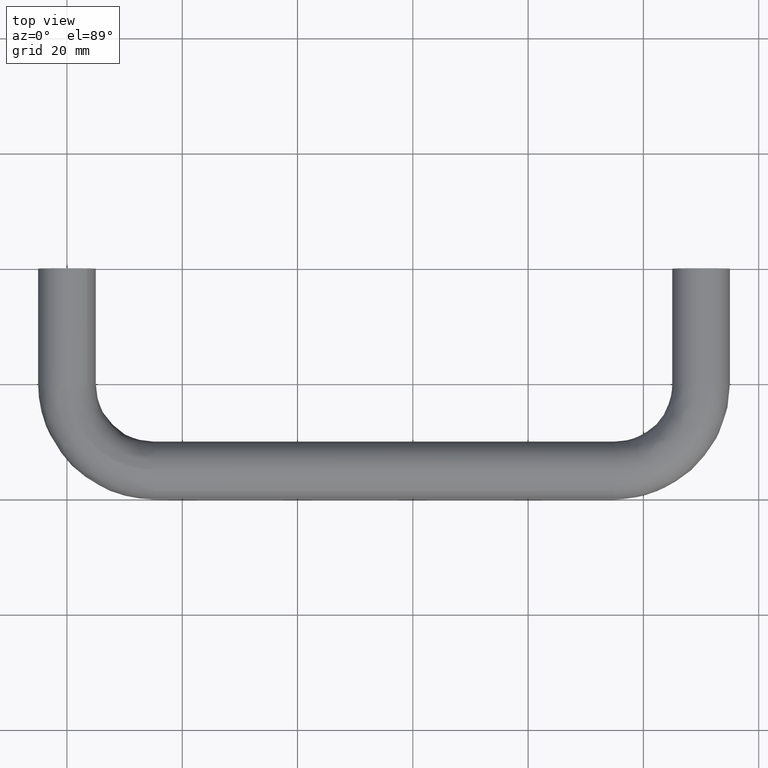
[diagram: clean part render]
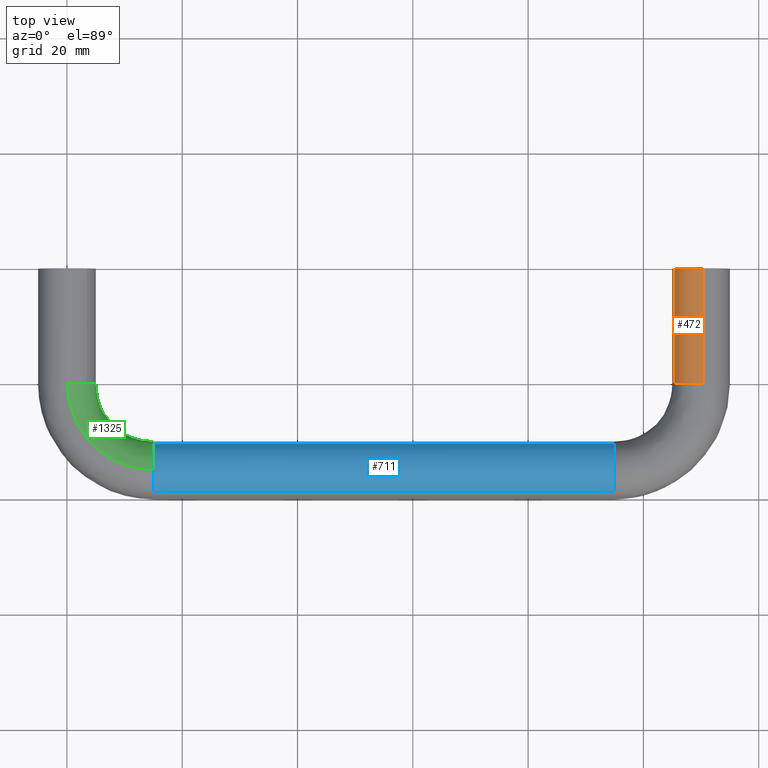
[diagram: same view with three faces highlighted in distinct colors, each labeled with its STEP entity id]
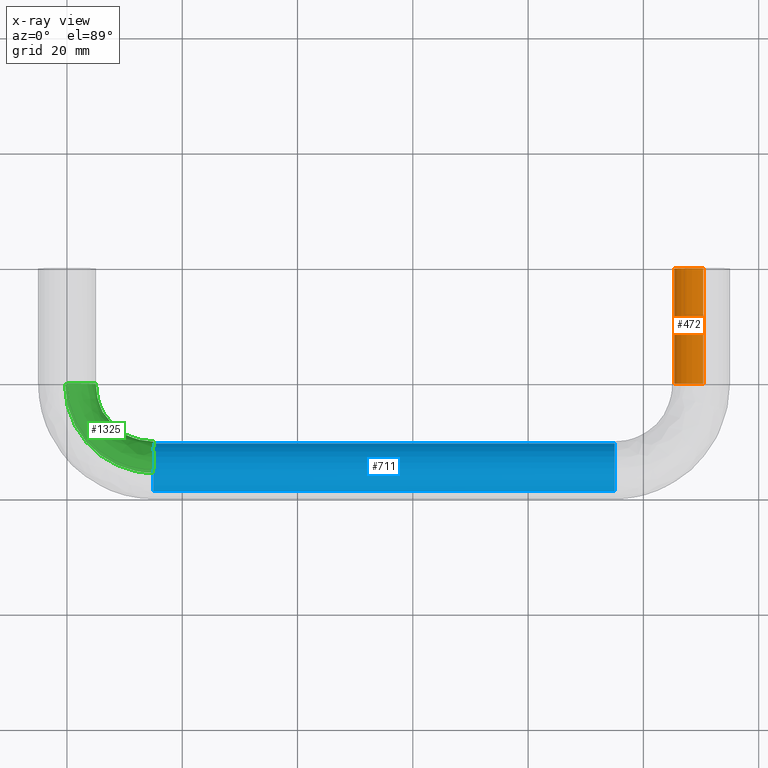
[diagram: x-ray of the same camera — body ghosted, the three highlighted faces saturated]
A machine part, top view with three faces highlighted in distinct colors.
The next image is the same camera in x-ray (body ghosted, the three faces saturated) — at least one of them is partly hidden behind the body in this view.
Their STEP definitions:

[orange] entity #472 — the highlighted face is a freeform B-spline surface patch.
#408=CARTESIAN_POINT('',(105.350677901122200,-20.500000000309932,1.839511897457181));
#409=CARTESIAN_POINT('',(106.709702162921660,-20.500000000309928,5.274413048153543));
#410=CARTESIAN_POINT('',(110.392295478639200,-20.500000000309932,4.984586668665638));
#411=CARTESIAN_POINT('',(105.350677901122200,0.512500000007762,1.839511897457181));
#412=CARTESIAN_POINT('',(106.709702162921660,0.512500000007762,5.274413048153543));
#413=CARTESIAN_POINT('',(110.392295478639200,0.512500000007762,4.984586668665638));
#421=(BOUNDED_SURFACE()B_SPLINE_SURFACE(2,1,((#408,#411),(#409,#412),(#410,#413)),.UNSPECIFIED.,.F.,.F.,.U.)B_SPLINE_SURFACE_WITH_KNOTS((3,3),(2,2),(0.0,6.582243619433233),(0.0,21.012500000317690),.UNSPECIFIED.)GEOMETRIC_REPRESENTATION_ITEM()RATIONAL_B_SPLINE_SURFACE(((0.906274169979695,0.906274169979695),(0.765685424949238,0.765685424949238),(1.0,1.0)))REPRESENTATION_ITEM('')SURFACE());
#422=CARTESIAN_POINT('',(110.392295478934200,-20.0,4.984586668642422));
#423=VERTEX_POINT('',#422);
#424=CARTESIAN_POINT('',(105.350677901148300,-20.0,1.839511897523061));
#425=VERTEX_POINT('',#424);
#426=CARTESIAN_POINT('',(110.392295478934230,-20.000000000000004,4.984586668642422));
#427=CARTESIAN_POINT('',(110.196450535334660,-20.000000000000004,5.0));
#428=CARTESIAN_POINT('',(110.0,-20.0,5.0));
#429=CARTESIAN_POINT('',(106.601130191421550,-20.000000000000004,4.999999999999999));
#430=CARTESIAN_POINT('',(105.350677901148260,-19.999999999999996,1.839511897523061));
#438=(BOUNDED_CURVE()B_SPLINE_CURVE(2,(#426,#427,#428,#429,#430),.UNSPECIFIED.,.F.,.U.)B_SPLINE_CURVE_WITH_KNOTS((3,2,3),(0.736331300612476,0.750000000000000,0.937532549935001),.UNSPECIFIED.)CURVE()GEOMETRIC_REPRESENTATION_ITEM()RATIONAL_B_SPLINE_CURVE((0.969723356129471,0.983986122557579,1.0,0.780291951268972,0.890203187496129))REPRESENTATION_ITEM(''));
#439=EDGE_CURVE('',#423,#425,#438,.T.);
#440=ORIENTED_EDGE('',*,*,#439,.F.);
#441=CARTESIAN_POINT('',(110.392295478934200,1.337819E-014,4.984586668642422));
#442=VERTEX_POINT('',#441);
#443=CARTESIAN_POINT('',(110.392295478934200,-20.0,4.984586668642422));
#444=CARTESIAN_POINT('',(110.392295478934200,1.337819E-014,4.984586668642422));
#445=QUASI_UNIFORM_CURVE('',1,(#443,#444),.UNSPECIFIED.,.F.,.U.);
#446=EDGE_CURVE('',#423,#442,#445,.T.);
#447=ORIENTED_EDGE('',*,*,#446,.T.);
#448=CARTESIAN_POINT('',(105.350677901148300,1.337036E-014,1.839511897523058));
#449=VERTEX_POINT('',#448);
#450=CARTESIAN_POINT('',(110.392295478934230,1.337819E-014,4.984586668642423));
#451=CARTESIAN_POINT('',(110.196450535334710,1.387779E-014,4.999999999999999));
#452=CARTESIAN_POINT('',(110.0,1.387779E-014,5.0));
#453=CARTESIAN_POINT('',(106.601130191421550,1.387779E-014,5.0));
#454=CARTESIAN_POINT('',(105.350677901148250,1.337036E-014,1.839511897523058));
#462=(BOUNDED_CURVE()B_SPLINE_CURVE(2,(#450,#451,#452,#453,#454),.UNSPECIFIED.,.F.,.U.)B_SPLINE_CURVE_WITH_KNOTS((3,2,3),(0.736331300612477,0.750000000000000,0.937532549935001),.UNSPECIFIED.)CURVE()GEOMETRIC_REPRESENTATION_ITEM()RATIONAL_B_SPLINE_CURVE((0.969723356129472,0.983986122557579,1.0,0.780291951268972,0.890203187496130))REPRESENTATION_ITEM(''));
#463=EDGE_CURVE('',#442,#449,#462,.T.);
#464=ORIENTED_EDGE('',*,*,#463,.T.);
#465=CARTESIAN_POINT('',(105.350677901148300,-20.0,1.839511897523061));
#466=CARTESIAN_POINT('',(105.350677901148300,1.337036E-014,1.839511897523058));
#467=QUASI_UNIFORM_CURVE('',1,(#465,#466),.UNSPECIFIED.,.F.,.U.);
#468=EDGE_CURVE('',#425,#449,#467,.T.);
#469=ORIENTED_EDGE('',*,*,#468,.F.);
#470=EDGE_LOOP('',(#440,#447,#464,#469));
#471=FACE_OUTER_BOUND('',#470,.T.);
#472=ADVANCED_FACE('',(#471),#421,.T.);

[blue] entity #711 — the highlighted face is a freeform B-spline surface patch.
#624=CARTESIAN_POINT('',(12.999999999724414,-30.349871884831014,1.838192647210637));
#625=CARTESIAN_POINT('',(12.999999999724418,-30.359577221165839,1.862024736854377));
#626=CARTESIAN_POINT('',(12.999999999724414,-30.775991944117962,2.884558388858315));
#627=CARTESIAN_POINT('',(12.999999999724411,-31.558227121531232,3.626871855061437));
#628=CARTESIAN_POINT('',(12.999999999724411,-35.185098976592663,7.068644733530205));
#629=CARTESIAN_POINT('',(12.999999999724414,-38.642418717601359,3.425389903713728));
#630=CARTESIAN_POINT('',(12.999999999724416,-38.657907510947915,3.409068121120542));
#631=CARTESIAN_POINT('',(97.050000000006904,-30.349871884831003,1.838192647210637));
#632=CARTESIAN_POINT('',(97.050000000006904,-30.359577221165825,1.862024736854377));
#633=CARTESIAN_POINT('',(97.050000000006889,-30.775991944117937,2.884558388858315));
#634=CARTESIAN_POINT('',(97.050000000006904,-31.558227121531221,3.626871855061437));
#635=CARTESIAN_POINT('',(97.050000000006904,-35.185098976592649,7.068644733530205));
#636=CARTESIAN_POINT('',(97.050000000006918,-38.642418717601345,3.425389903713728));
#637=CARTESIAN_POINT('',(97.050000000006904,-38.657907510947908,3.409068121120542));
#645=(BOUNDED_SURFACE()B_SPLINE_SURFACE(2,1,((#624,#631),(#625,#632),(#626,#633),(#627,#634),(#628,#635),(#629,#636),(#630,#637)),.UNSPECIFIED.,.F.,.F.,.U.)B_SPLINE_SURFACE_WITH_KNOTS((3,1,2,1,3),(2,2),(0.0,0.053025391747123,2.372621341036454,10.656892588498360,10.709913013632811),(0.0,84.050000000282495),.UNSPECIFIED.)GEOMETRIC_REPRESENTATION_ITEM()RATIONAL_B_SPLINE_SURFACE(((0.880255691154920,0.880255691154920),(0.881080572664668,0.881080572664668),(0.917989898732233,0.917989898732233),(1.0,1.0),(0.707106781186548,0.707106781186548),(1.001874555107698,1.001874555107698),(1.003749110215396,1.003749110215396)))REPRESENTATION_ITEM('')SURFACE());
#646=CARTESIAN_POINT('',(95.0,-38.626872467427603,3.441772233169235));
#647=VERTEX_POINT('',#646);
#648=CARTESIAN_POINT('',(95.000000000000028,-30.369262203831472,1.885806846711061));
#649=VERTEX_POINT('',#648);
#650=CARTESIAN_POINT('',(95.0,-38.626872467427603,3.441772233169235));
#651=CARTESIAN_POINT('',(95.0,-37.148170583651762,5.0));
#652=CARTESIAN_POINT('',(95.0,-35.0,5.0));
#653=CARTESIAN_POINT('',(95.000000000000014,-31.637476261490971,4.999999999999999));
#654=CARTESIAN_POINT('',(95.000000000000043,-30.369262203831472,1.885806846711061));
#662=(BOUNDED_CURVE()B_SPLINE_CURVE(2,(#650,#651,#652,#653,#654),.UNSPECIFIED.,.F.,.U.)B_SPLINE_CURVE_WITH_KNOTS((3,2,3),(0.621049472957233,0.750000000000000,0.935964072496471),.UNSPECIFIED.)CURVE()GEOMETRIC_REPRESENTATION_ITEM()RATIONAL_B_SPLINE_CURVE((0.853699665346208,0.848925060267012,1.0,0.782129536891402,0.888387702553740))REPRESENTATION_ITEM(''));
#663=EDGE_CURVE('',#647,#649,#662,.T.);
#664=ORIENTED_EDGE('',*,*,#663,.T.);
#665=CARTESIAN_POINT('',(14.999999999979890,-30.369264401945401,1.885812244307645));
#666=VERTEX_POINT('',#665);
#667=CARTESIAN_POINT('',(14.999999999979890,-30.369264401945401,1.885812244307645));
#668=CARTESIAN_POINT('',(95.000000000000028,-30.369262203831472,1.885806846711061));
#669=QUASI_UNIFORM_CURVE('',1,(#667,#668),.UNSPECIFIED.,.F.,.U.);
#670=EDGE_CURVE('',#666,#649,#669,.T.);
#671=ORIENTED_EDGE('',*,*,#670,.F.);
#672=CARTESIAN_POINT('',(14.999999999731131,-34.937169800208132,4.999605221014366));
#673=VERTEX_POINT('',#672);
#674=CARTESIAN_POINT('',(14.999999999731131,-34.937169800208125,4.999605221014366));
#675=CARTESIAN_POINT('',(14.999999999911763,-31.620344960892414,4.957922576213266));
#676=CARTESIAN_POINT('',(14.999999999979892,-30.369264401945397,1.885812244307645));
#684=(BOUNDED_CURVE()B_SPLINE_CURVE(2,(#674,#675,#676),.UNSPECIFIED.,.F.,.U.)B_SPLINE_CURVE_WITH_KNOTS((3,3),(0.752215704104662,0.935963889442218),.UNSPECIFIED.)CURVE()GEOMETRIC_REPRESENTATION_ITEM()RATIONAL_B_SPLINE_CURVE((0.994854295583272,0.783395780557880,0.888387493363011))REPRESENTATION_ITEM(''));
#685=EDGE_CURVE('',#673,#666,#684,.T.);
#686=ORIENTED_EDGE('',*,*,#685,.F.);
#687=CARTESIAN_POINT('',(14.999999999999989,-38.626872474896267,3.441772225298902));
#688=VERTEX_POINT('',#687);
#689=CARTESIAN_POINT('',(14.999999999999993,-38.626872474896274,3.441772225298901));
#690=CARTESIAN_POINT('',(15.000000000000005,-37.148170596504549,5.000000000000001));
#691=CARTESIAN_POINT('',(15.0,-35.0,5.0));
#692=CARTESIAN_POINT('',(14.999999999999995,-34.968583659665398,4.999999999999999));
#693=CARTESIAN_POINT('',(14.999999999731136,-34.937169800208125,4.999605221014366));
#701=(BOUNDED_CURVE()B_SPLINE_CURVE(2,(#689,#690,#691,#692,#693),.UNSPECIFIED.,.F.,.U.)B_SPLINE_CURVE_WITH_KNOTS((3,2,3),(0.621049472302264,0.750000000000000,0.752215704104661),.UNSPECIFIED.)CURVE()GEOMETRIC_REPRESENTATION_ITEM()RATIONAL_B_SPLINE_CURVE((0.853699665394710,0.848925059499667,1.0,0.997404141171390,0.994854295583274))REPRESENTATION_ITEM(''));
#702=EDGE_CURVE('',#688,#673,#701,.T.);
#703=ORIENTED_EDGE('',*,*,#702,.F.);
#704=CARTESIAN_POINT('',(14.999999999999989,-38.626872474896267,3.441772225298902));
#705=CARTESIAN_POINT('',(95.0,-38.626872467427603,3.441772233169235));
#706=QUASI_UNIFORM_CURVE('',1,(#704,#705),.UNSPECIFIED.,.F.,.U.);
#707=EDGE_CURVE('',#688,#647,#706,.T.);
#708=ORIENTED_EDGE('',*,*,#707,.T.);
#709=EDGE_LOOP('',(#664,#671,#686,#703,#708));
#710=FACE_OUTER_BOUND('',#709,.T.);
#711=ADVANCED_FACE('',(#710),#645,.T.);

[green] entity #1325 — the highlighted face is a freeform B-spline surface patch.
#665=CARTESIAN_POINT('',(14.999999999979890,-30.369264401945401,1.885812244307645));
#666=VERTEX_POINT('',#665);
#672=CARTESIAN_POINT('',(14.999999999731131,-34.937169800208132,4.999605221014366));
#673=VERTEX_POINT('',#672);
#674=CARTESIAN_POINT('',(14.999999999731131,-34.937169800208125,4.999605221014366));
#675=CARTESIAN_POINT('',(14.999999999911763,-31.620344960892414,4.957922576213266));
#676=CARTESIAN_POINT('',(14.999999999979892,-30.369264401945397,1.885812244307645));
#684=(BOUNDED_CURVE()B_SPLINE_CURVE(2,(#674,#675,#676),.UNSPECIFIED.,.F.,.U.)B_SPLINE_CURVE_WITH_KNOTS((3,3),(0.752215704104662,0.935963889442218),.UNSPECIFIED.)CURVE()GEOMETRIC_REPRESENTATION_ITEM()RATIONAL_B_SPLINE_CURVE((0.994854295583272,0.783395780557880,0.888387493363011))REPRESENTATION_ITEM(''));
#685=EDGE_CURVE('',#673,#666,#684,.T.);
#825=CARTESIAN_POINT('',(14.999999999939860,-35.348666258398268,-4.987828369165738));
#826=VERTEX_POINT('',#825);
#840=CARTESIAN_POINT('',(15.0,-30.0,0.0));
#841=VERTEX_POINT('',#840);
#842=CARTESIAN_POINT('',(15.0,-30.0,0.0));
#843=CARTESIAN_POINT('',(14.999999999999995,-30.000000000000004,-5.000000000000001));
#844=CARTESIAN_POINT('',(15.0,-35.0,-5.0));
#845=CARTESIAN_POINT('',(15.000000000000005,-35.174545579896524,-5.0));
#846=CARTESIAN_POINT('',(14.999999999939860,-35.348666258398268,-4.987828369165738));
#854=(BOUNDED_CURVE()B_SPLINE_CURVE(2,(#842,#843,#844,#845,#846),.UNSPECIFIED.,.F.,.U.)B_SPLINE_CURVE_WITH_KNOTS((3,2,3),(0.0,0.250000000000000,0.262166313500798),.UNSPECIFIED.)CURVE()GEOMETRIC_REPRESENTATION_ITEM()RATIONAL_B_SPLINE_CURVE((1.0,0.707106781186548,1.0,0.985746277110630,0.972879876311065))REPRESENTATION_ITEM(''));
#855=EDGE_CURVE('',#841,#826,#854,.T.);
#857=CARTESIAN_POINT('',(14.999999999979885,-30.369264401945404,1.885812244307645));
#858=CARTESIAN_POINT('',(15.0,-30.000000000000007,0.979059296734256));
#859=CARTESIAN_POINT('',(15.0,-30.0,0.0));
#867=(BOUNDED_CURVE()B_SPLINE_CURVE(2,(#857,#858,#859),.UNSPECIFIED.,.F.,.U.)B_SPLINE_CURVE_WITH_KNOTS((3,3),(0.935963889442219,1.0),.UNSPECIFIED.)CURVE()GEOMETRIC_REPRESENTATION_ITEM()RATIONAL_B_SPLINE_CURVE((0.888387493363012,0.924977029833749,1.0))REPRESENTATION_ITEM(''));
#868=EDGE_CURVE('',#666,#841,#867,.T.);
#896=CARTESIAN_POINT('',(0.062830199628879,-20.000000000205208,4.999605221016415));
#897=VERTEX_POINT('',#896);
#898=CARTESIAN_POINT('',(3.504546321925250,-20.000000000062158,3.566252245321120));
#899=VERTEX_POINT('',#898);
#900=CARTESIAN_POINT('',(0.062830199628879,-20.000000000205205,4.999605221016415));
#901=CARTESIAN_POINT('',(2.071645074840382,-20.000000000121712,4.974360379779231));
#902=CARTESIAN_POINT('',(3.504546321925250,-20.000000000062158,3.566252245321120));
#910=(BOUNDED_CURVE()B_SPLINE_CURVE(2,(#900,#901,#902),.UNSPECIFIED.,.F.,.U.)B_SPLINE_CURVE_WITH_KNOTS((3,3),(0.752215704093194,0.873683242447675),.UNSPECIFIED.)CURVE()GEOMETRIC_REPRESENTATION_ITEM()RATIONAL_B_SPLINE_CURVE((0.994854295609666,0.855068723091266,0.853569641250545))REPRESENTATION_ITEM(''));
#911=EDGE_CURVE('',#897,#899,#910,.T.);
#954=CARTESIAN_POINT('',(3.566252577198210,-20.000000000000011,-3.504545984236320));
#955=VERTEX_POINT('',#954);
#961=CARTESIAN_POINT('',(-0.348666259149990,-20.000000000227931,-4.987828369113188));
#962=VERTEX_POINT('',#961);
#963=CARTESIAN_POINT('',(3.566252577198210,-20.000000000000007,-3.504545984236320));
#964=CARTESIAN_POINT('',(2.096674564792697,-20.000000000000004,-5.0));
#965=CARTESIAN_POINT('',(2.449213E-015,-20.0,-5.0));
#966=CARTESIAN_POINT('',(-0.174545580650999,-20.0,-4.999999999999999));
#967=CARTESIAN_POINT('',(-0.348666259149990,-20.000000000227928,-4.987828369113188));
#975=(BOUNDED_CURVE()B_SPLINE_CURVE(2,(#963,#964,#965,#966,#967),.UNSPECIFIED.,.F.,.U.)B_SPLINE_CURVE_WITH_KNOTS((3,2,3),(0.123683213869138,0.250000000000000,0.262166313552638),.UNSPECIFIED.)CURVE()GEOMETRIC_REPRESENTATION_ITEM()RATIONAL_B_SPLINE_CURVE((0.853569641955952,0.852010679679845,1.0,0.985746277049897,0.972879876201421))REPRESENTATION_ITEM(''));
#976=EDGE_CURVE('',#955,#962,#975,.T.);
#1025=CARTESIAN_POINT('',(5.000000000000003,-20.0,0.0));
#1026=VERTEX_POINT('',#1025);
#1027=CARTESIAN_POINT('',(3.504546321925250,-20.000000000062162,3.566252245321120));
#1028=CARTESIAN_POINT('',(5.000000000000003,-20.000000000000007,2.096674008036697));
#1029=CARTESIAN_POINT('',(5.000000000000003,-20.0,0.0));
#1037=(BOUNDED_CURVE()B_SPLINE_CURVE(2,(#1027,#1028,#1029),.UNSPECIFIED.,.F.,.U.)B_SPLINE_CURVE_WITH_KNOTS((3,3),(0.873683242447675,1.0),.UNSPECIFIED.)CURVE()GEOMETRIC_REPRESENTATION_ITEM()RATIONAL_B_SPLINE_CURVE((0.853569641250544,0.852010713161685,1.0))REPRESENTATION_ITEM(''));
#1038=EDGE_CURVE('',#899,#1026,#1037,.T.);
#1040=CARTESIAN_POINT('',(5.000000000000003,-20.0,0.0));
#1041=CARTESIAN_POINT('',(5.000000000000003,-20.0,-2.045553455142914));
#1042=CARTESIAN_POINT('',(3.566252577198209,-20.000000000000011,-3.504545984236319));
#1050=(BOUNDED_CURVE()B_SPLINE_CURVE(2,(#1040,#1041,#1042),.UNSPECIFIED.,.F.,.U.)B_SPLINE_CURVE_WITH_KNOTS((3,3),(0.0,0.123683213869138),.UNSPECIFIED.)CURVE()GEOMETRIC_REPRESENTATION_ITEM()RATIONAL_B_SPLINE_CURVE((1.0,0.855096101506702,0.853569641955952))REPRESENTATION_ITEM(''));
#1051=EDGE_CURVE('',#1026,#955,#1050,.T.);
#1254=CARTESIAN_POINT('',(0.062830199628879,-20.000000000205212,4.999605221016415));
#1255=CARTESIAN_POINT('',(0.062830199827186,-34.937169800045510,4.999605221019079));
#1256=CARTESIAN_POINT('',(14.999999999731138,-34.937169800208125,4.999605221014366));
#1264=(BOUNDED_CURVE()B_SPLINE_CURVE(2,(#1254,#1255,#1256),.UNSPECIFIED.,.F.,.U.)B_SPLINE_CURVE_WITH_KNOTS((3,3),(-1.747842683640538,-0.278273130983541),.UNSPECIFIED.)CURVE()GEOMETRIC_REPRESENTATION_ITEM()RATIONAL_B_SPLINE_CURVE((0.893710737953732,0.628668022901208,0.884455039442277))REPRESENTATION_ITEM(''));
#1265=EDGE_CURVE('',#897,#673,#1264,.T.);
#1269=CARTESIAN_POINT('',(-0.348666259149989,-20.000000000227931,-4.987828369113188));
#1270=CARTESIAN_POINT('',(-0.348666257421345,-35.348666257756932,-4.987828369202160));
#1271=CARTESIAN_POINT('',(14.999999999939858,-35.348666258398268,-4.987828369165738));
#1279=(BOUNDED_CURVE()B_SPLINE_CURVE(2,(#1269,#1270,#1271),.UNSPECIFIED.,.F.,.U.)B_SPLINE_CURVE_WITH_KNOTS((3,3),(-1.747842683638215,-0.278273130954426),.UNSPECIFIED.)CURVE()GEOMETRIC_REPRESENTATION_ITEM()RATIONAL_B_SPLINE_CURVE((0.873607430581847,0.614526639155597,0.864559931607216))REPRESENTATION_ITEM(''));
#1280=EDGE_CURVE('',#962,#826,#1279,.T.);
#1285=CARTESIAN_POINT('',(0.098600716222395,-18.966878014517178,4.999605221019078));
#1286=CARTESIAN_POINT('',(-1.089345036878612,-36.101402536471873,4.999605221019078));
#1287=CARTESIAN_POINT('',(16.044284753560255,-34.900621161714618,4.999605221019078));
#1288=CARTESIAN_POINT('',(5.086233223202100,-19.312673244907323,4.936775021602315));
#1289=CARTESIAN_POINT('',(4.295903609489112,-30.712118136429016,4.936775021602317));
#1290=CARTESIAN_POINT('',(15.694753244189140,-29.913249099195308,4.936775021602316));
#1291=CARTESIAN_POINT('',(5.023553485267273,-19.308327625138915,-0.062830199416763));
#1292=CARTESIAN_POINT('',(4.228227016757821,-30.779845446606387,-0.062830199416763));
#1293=CARTESIAN_POINT('',(15.699145817895541,-29.975925564116242,-0.062830199416763));
#1294=CARTESIAN_POINT('',(4.960873747332447,-19.303982005370475,-5.062435420435842));
#1295=CARTESIAN_POINT('',(4.160550424026535,-30.847572756783755,-5.062435420435843));
#1296=CARTESIAN_POINT('',(15.703538391601944,-30.038602029037168,-5.062435420435841));
#1297=CARTESIAN_POINT('',(-0.026758759647256,-18.958186774980330,-4.999605221019078));
#1298=CARTESIAN_POINT('',(-1.224698222341192,-36.236857156826623,-4.999605221019078));
#1299=CARTESIAN_POINT('',(16.053069900973050,-35.025974091556463,-4.999605221019078));
#1300=CARTESIAN_POINT('',(-0.169502521420188,-18.948290273600179,-4.997807049440652));
#1301=CARTESIAN_POINT('',(-1.378821576214875,-36.391096012125153,-4.997807049440652));
#1302=CARTESIAN_POINT('',(16.063073332949237,-35.168710399528031,-4.997807049440652));
#1303=CARTESIAN_POINT('',(-0.311910042768306,-18.938417083948579,-4.987828388444838));
#1304=CARTESIAN_POINT('',(-1.532581884437129,-36.544971549702595,-4.987828388444838));
#1305=CARTESIAN_POINT('',(16.073053201316238,-35.311110484632593,-4.987828388444837));
#1313=(BOUNDED_SURFACE()B_SPLINE_SURFACE(2,2,((#1285,#1288,#1291,#1294,#1297,#1300,#1303),(#1286,#1289,#1292,#1295,#1298,#1301,#1304),(#1287,#1290,#1293,#1296,#1299,#1302,#1305)),.UNSPECIFIED.,.F.,.F.,.U.)B_SPLINE_SURFACE_WITH_KNOTS((3,3),(3,2,2,3),(0.0,27.970787327513779),(0.0,8.284271247461904,16.568542494923811,16.899913028802420),.UNSPECIFIED.)GEOMETRIC_REPRESENTATION_ITEM()RATIONAL_B_SPLINE_SURFACE(((0.921487970695580,0.651590392860676,0.921487970695580,0.651590392860676,0.921487970695580,0.910692077877960,0.900759855662087),(0.601353110281207,0.425220862167464,0.601353110281207,0.425220862167464,0.601353110281207,0.594307827075570,0.587826165988871),(0.911307631818076,0.644391806205615,0.911307631818076,0.644391806205615,0.911307631818076,0.900631008975608,0.890808515145976)))REPRESENTATION_ITEM('')SURFACE());
#1314=ORIENTED_EDGE('',*,*,#855,.T.);
#1315=ORIENTED_EDGE('',*,*,#1280,.F.);
#1316=ORIENTED_EDGE('',*,*,#976,.F.);
#1317=ORIENTED_EDGE('',*,*,#1051,.F.);
#1318=ORIENTED_EDGE('',*,*,#1038,.F.);
#1319=ORIENTED_EDGE('',*,*,#911,.F.);
#1320=ORIENTED_EDGE('',*,*,#1265,.T.);
#1321=ORIENTED_EDGE('',*,*,#685,.T.);
#1322=ORIENTED_EDGE('',*,*,#868,.T.);
#1323=EDGE_LOOP('',(#1314,#1315,#1316,#1317,#1318,#1319,#1320,#1321,#1322));
#1324=FACE_OUTER_BOUND('',#1323,.T.);
#1325=ADVANCED_FACE('',(#1324),#1313,.T.);